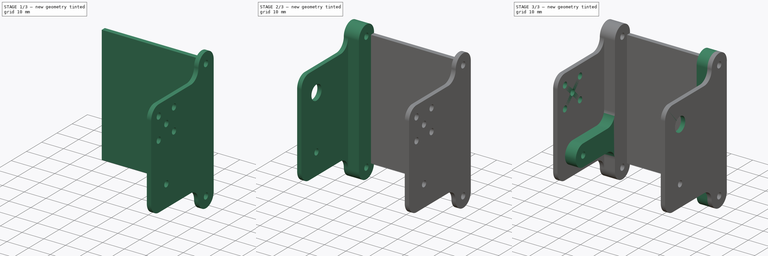
[diagram: build sequence overview — one tinted view per stage of 3, left to right]
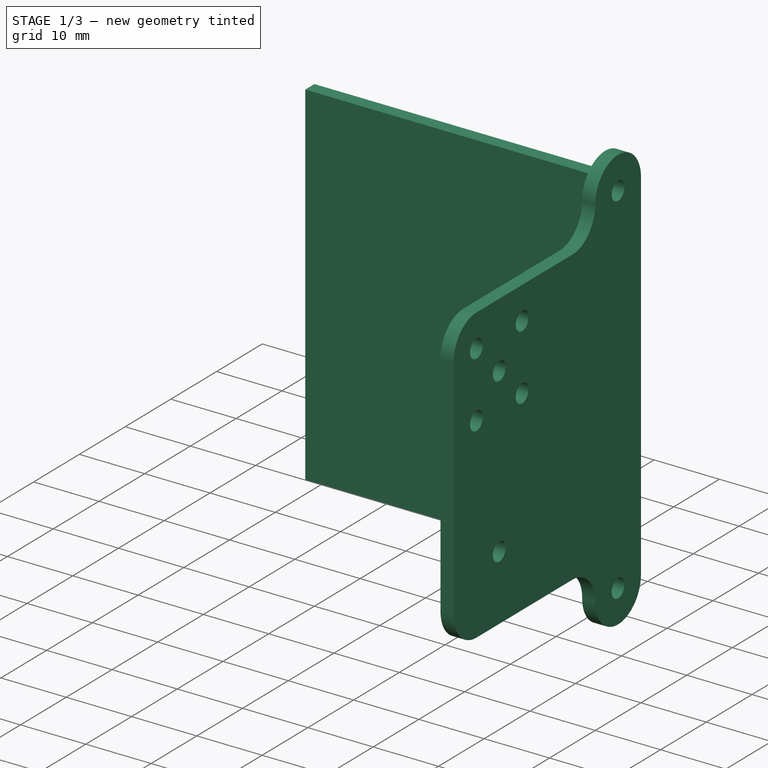
[diagram: stage 1 of 3 — iso view after this stage's code; geometry added in this stage tinted green]
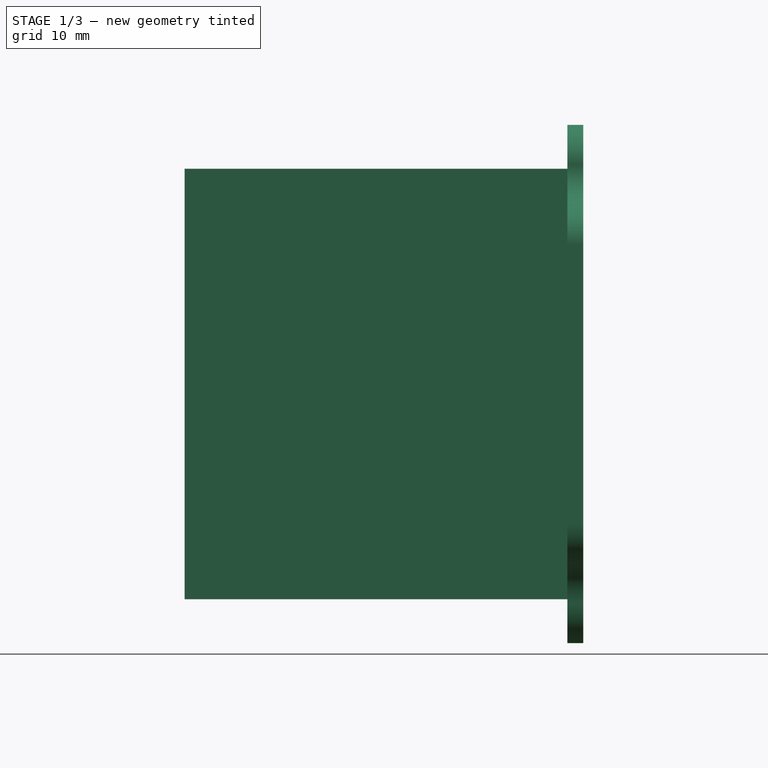
[diagram: stage 1 of 3 — front view after this stage's code; geometry added in this stage tinted green]
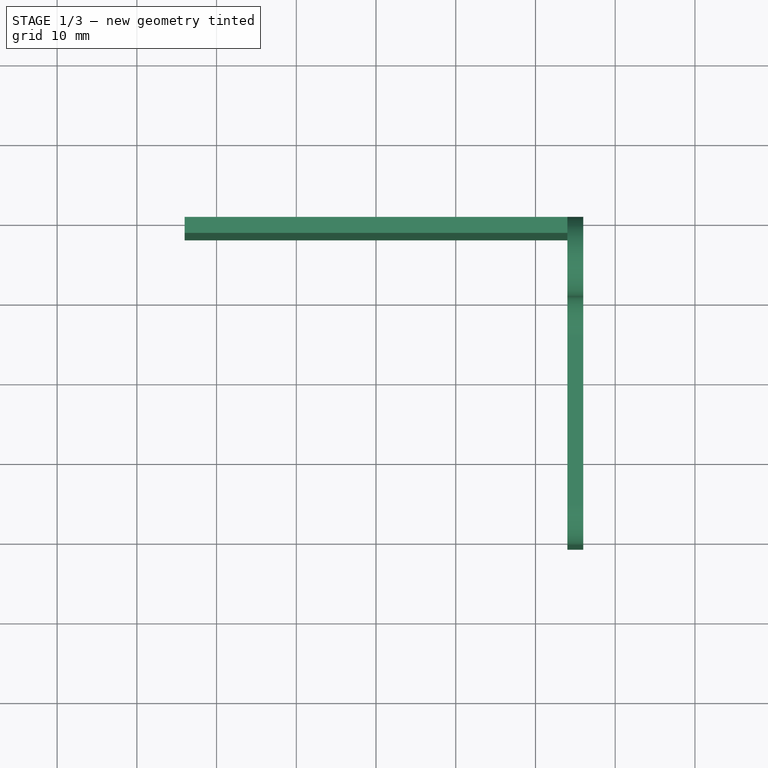
[diagram: stage 1 of 3 — top view after this stage's code; geometry added in this stage tinted green]
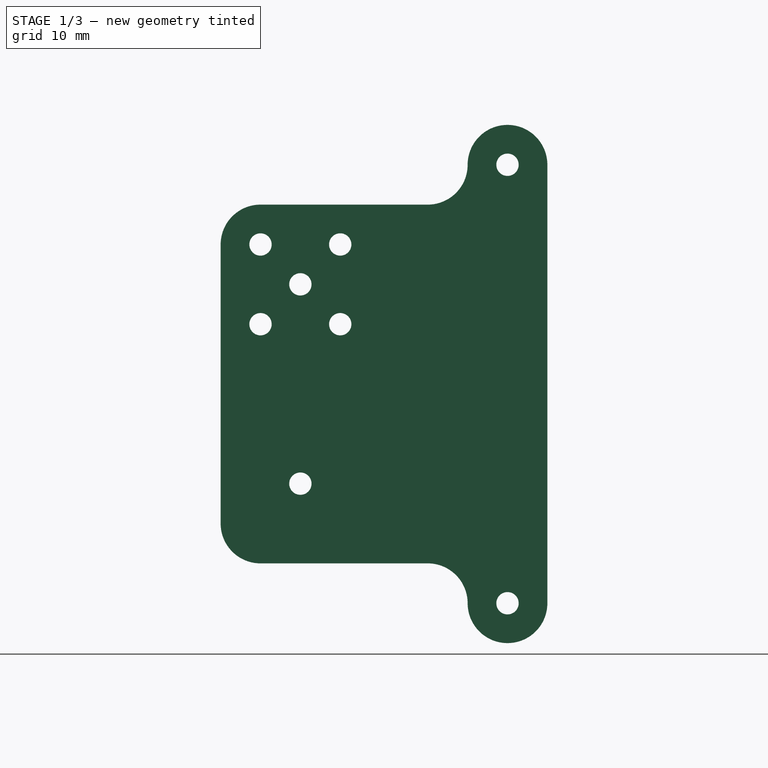
[diagram: stage 1 of 3 — right view after this stage's code; geometry added in this stage tinted green]
FCSTD DOCUMENT  (FreeCAD 0.21R33668 +26 (Git))
Label: 4L_knee
License: All rights reserved
LicenseURL: http://en.wikipedia.org/wiki/All_rights_reserved
objects: Sketcher::SketchObject×5, PartDesign::Pad×5, Spreadsheet::Sheet×1, PartDesign::Body×1, Part::Mirroring×1
note: 17 computed .brp shape members not serialized (recipe doc carries the construction recipe); baked Part::Feature solids carry a one-line shape summary decoded from their .brp

FEATURE [Spreadsheet::Sheet] Spreadsheet
  cells = A2='thickness; B2(thickness)=2; A3='foot_width; B3(foot_width)=82; A4='foot_length; B4(foot_length)=125; A5='foot_diameter; B5(foot_diameter)=5; A6='foot_whole_middle_length; B6(foot_whole_middle_length)=40; A7='foot_whole_frontback_length; B7(foot_whole_frontback_length)=20; A8='foot_side_distance; B8(foot_side_distance)=10; A9='foot_frontback_distance; B9(foot_frontback_distance)=10; A11='tarsus_radius; B11(tarsus_radius)=10; A12='tarsus_width; B12(tarsus_width)=35; A13='tarsus_height; B13(tarsus_height)=35; A14='tarsus_length; B14(tarsus_length)=49; A15='tarsus_x_pos; B15(tarsus_x_pos)=7.5; A16='tarsus_front_y_pos; B16(tarsus_front_y_pos)==B2 + B14 / 2; C16='c; A17='tarsus_back_y_pos; B17(tarsus_back_y_pos)==-(B14 / 2); C17='c; A19='screw_distance; B19(screw_distance)=7; A20='screw_center_height; B20(screw_center_height)=25; A21='screw_dia; B21(screw_dia)=2.8; A22='axis_dia; B22(axis_dia)=6; A23='screw_strengthener; B23(screw_strengthener)=5; A25='knee_z_len; B25(knee_z_len)=54; A26='knee_x_len; B26(knee_x_len)=48; A27='knee_y_len; B27(knee_y_len)=44; A28='knee_front_len; B28(knee_front_len)==68 - 2 * B30; A29='knee_back_len; B29(knee_back_len)=36; A30='screw_outer_radius; B30(screw_outer_radius)=3; A31='knee_front_holes_dist; B31(knee_front_holes_dist)==B34 + 2 * B35; C31='computed variable d; A32='knee_front_holes_y_offset; B32(knee_front_holes_y_offset)=5; A33='knee_front_back_whole_dist; B33(knee_front_back_whole_dist)==sqrt(B36 * B36 - B35 * B35); C33='computed variable e; A34='knee_back_holes_dist; B34(knee_back_holes_dist)=25; C34='variable b ; A35='knee_front_back_height; B35(knee_front_back_height)=15; C35='variable a; A36='knee_front_back_radius; B36(knee_front_back_radius)=30; C36='variable f
FEATURE [Sketcher::SketchObject] Sketch  label="kneeBasePlateSketch"
  FullyConstrained = true
  MapMode = 5
  Placement = pos=(0,0,0) rot=(1,0,0;1.5708rad)
  Support = -> [XZ_Plane]
  expr: Constraints[8] = Spreadsheet.knee_x_len
  expr: Constraints[9] = Spreadsheet.knee_z_len
  sketch-geometry (4):
    g0: LineSegment StartX=-24 StartY=27 StartZ=0 EndX=24 EndY=27 EndZ=0
    g1: LineSegment StartX=24 StartY=27 StartZ=0 EndX=24 EndY=-27 EndZ=0
    g2: LineSegment StartX=24 StartY=-27 StartZ=0 EndX=-24 EndY=-27 EndZ=0
    g3: LineSegment StartX=-24 StartY=-27 StartZ=0 EndX=-24 EndY=27 EndZ=0
  constraints (10):
    c: Coincident(g0,g1)
    c: Coincident(g1,g2)
    c: Coincident(g2,g3)
    c: Coincident(g3,g0)
    c: Horizontal(g2)
    c: Vertical(g3)
    c: Symmetric(g0,g0,g-2)
    c: Symmetric(g0,g1,g-1)
    c: DistanceX(g0,g0) = 48
    c: DistanceY(g1,g1) = 54
FEATURE [PartDesign::Pad] Pad  label="kneeBasePlatePad"
  Direction = (0,-1,-2e-16)
  Length = 2
  Length2 = 10
  Placement = pos=(0,0,0) rot=(1,0,0;1.5708rad)
  Profile = -> Sketch
  ReferenceAxis = -> Sketch [N_Axis]
  Type = 0
  expr: Length = Spreadsheet.thickness
FEATURE [Sketcher::SketchObject] Sketch001  label="outerPlateSketch"
  ExternalGeometry = -> [Pad]
  FullyConstrained = true
  MapMode = 5
  Placement = pos=(24,0,0) rot=(0.707107,0,0.707107;3.14159rad)
  Support = -> [Pad]
  expr: Constraints[20] = Spreadsheet.screw_dia
  expr: Constraints[23] = Spreadsheet.knee_front_back_whole_dist
  expr: Constraints[24] = Spreadsheet.knee_back_holes_dist
  expr: Constraints[25] = (Spreadsheet.knee_front_holes_dist - Spreadsheet.knee_back_holes_dist) / 2
  expr: Constraints[4] = Spreadsheet.knee_front_holes_dist
  expr: Constraints[5] = Spreadsheet.knee_front_holes_y_offset
  expr: Constraints[7] = Spreadsheet.screw_dia
  sketch-geometry (19):
    g0: LineSegment StartX=-27.5 StartY=0 StartZ=0 EndX=27.5 EndY=0 EndZ=0
    g1: LineSegment StartX=17.5 StartY=40.9808 StartZ=0 EndX=-17.5 EndY=40.9808 EndZ=0
    g2: ArcOfCircle CenterX=-27.5 CenterY=5 CenterZ=0 NormalX=0 NormalY=0 NormalZ=1 AngleXU=0 Radius=5 StartAngle=1.5708 EndAngle=4.71239
    g3: ArcOfCircle CenterX=27.5 CenterY=5 CenterZ=0 NormalX=0 NormalY=0 NormalZ=1 AngleXU=0 Radius=5 StartAngle=4.71239 EndAngle=7.85398
    g4: Circle CenterX=-27.5 CenterY=5 CenterZ=0 NormalX=0 NormalY=0 NormalZ=1 AngleXU=0 Radius=1.4
    g5: Circle CenterX=27.5 CenterY=5 CenterZ=0 NormalX=0 NormalY=0 NormalZ=1 AngleXU=0 Radius=1.4
    g6: Circle CenterX=12.5 CenterY=30.9808 CenterZ=0 NormalX=0 NormalY=0 NormalZ=1 AngleXU=0 Radius=1.4
    g7: Circle CenterX=17.5 CenterY=25.9808 CenterZ=0 NormalX=0 NormalY=0 NormalZ=1 AngleXU=0 Radius=1.4
    g8: Circle CenterX=17.5 CenterY=35.9808 CenterZ=0 NormalX=0 NormalY=0 NormalZ=1 AngleXU=0 Radius=1.4
    g9: Circle CenterX=7.5 CenterY=35.9808 CenterZ=0 NormalX=0 NormalY=0 NormalZ=1 AngleXU=0 Radius=1.4
    g10: Circle CenterX=7.5 CenterY=25.9808 CenterZ=0 NormalX=0 NormalY=0 NormalZ=1 AngleXU=0 Radius=1.4
    g11: Circle CenterX=-12.5 CenterY=30.9808 CenterZ=0 NormalX=0 NormalY=0 NormalZ=1 AngleXU=0 Radius=1.4
    g12: ArcOfCircle CenterX=-17.5 CenterY=35.9808 CenterZ=0 NormalX=0 NormalY=0 NormalZ=1 AngleXU=0 Radius=5 StartAngle=1.5708 EndAngle=3.14159
    g13: ArcOfCircle CenterX=17.5 CenterY=35.9808 CenterZ=0 NormalX=0 NormalY=0 NormalZ=1 AngleXU=0 Radius=5 StartAngle=-9e-16 EndAngle=1.5708
    g14: GeomPoint X=0 Y=0 Z=0
    g15: LineSegment StartX=-22.5 StartY=35.9808 StartZ=0 EndX=-22.5 EndY=15 EndZ=0
    g16: ArcOfCircle CenterX=-27.5 CenterY=15 CenterZ=0 NormalX=0 NormalY=0 NormalZ=1 AngleXU=0 Radius=5 StartAngle=4.71239 EndAngle=6.28319
    g17: LineSegment StartX=22.5 StartY=35.9808 StartZ=0 EndX=22.5 EndY=15 EndZ=0
    g18: ArcOfCircle CenterX=27.5 CenterY=15 CenterZ=0 NormalX=0 NormalY=0 NormalZ=1 AngleXU=0 Radius=5 StartAngle=3.14159 EndAngle=4.71239
  constraints (52):
    c: PointOnObject(g0,g-1)
    c: Horizontal(g1)
    c: Tangent(g3,g0) = -1.5708
    c: Tangent(g2,g0) = -1.5708
    c: DistanceX(g4,g5) = 55
    c: DistanceY(g-1,g5) = 5
    c: Equal(g4,g5)
    c: Diameter(g4) = 2.8
    c: Horizontal(g4,g5)
    c: Horizontal(g11,g6)
    c: Vertical(g9,g10)
    c: Vertical(g8,g7)
    c: Horizontal(g9,g8)
    c: Horizontal(g10,g7)
    c: Symmetric(g9,g7,g6)
    c: Equal(g9,g10)
    c: Equal(g9,g11)
    c: Equal(g9,g6)
    c: Equal(g9,g7)
    c: Equal(g9,g8)
    c: Diameter(g9) = 2.8
    c: DistanceX(g10,g7) = 10
    c: DistanceY(g10,g9) = 10
    c: DistanceY(g4,g11) = 25.9808
    c: DistanceX(g11,g6) = 25
    c: DistanceX(g4,g11) = 15
    c: Tangent(g1,g12) = -1.5708
    c: Tangent(g1,g13) = -1.5708
    c: Radius(g12) = 5
    c: Radius(g13) = 5
    c: Coincident(g2,g4)
    c: Coincident(g3,g5)
    c: Coincident(g13,g8)
    c: DistanceX(g12,g11) = 5
    c: Symmetric(g0,g0,g14)
    c: Coincident(g14,g-1)
    c: Coincident(g15,g12)
    c: Vertical(g15)
    c: Coincident(g16,g15)
    c: Coincident(g16,g2)
    c: Horizontal(g15,g16)
    c: Vertical(g2,g2)
    c: Vertical(g2,g16)
    c: Horizontal(g12,g12)
    c: Coincident(g17,g13)
    c: Vertical(g17)
    c: Coincident(g18,g3)
    c: Coincident(g18,g17)
    c: Horizontal(g18,g17)
    c: Vertical(g3,g3)
    c: Vertical(g18,g3)
    c: Horizontal(g13,g12)
FEATURE [Sketcher::SketchObject] Sketch002  label="innerPlateSketch"
  ExternalGeometry = -> [Sketch001,Pad]
  FullyConstrained = true
  MapMode = 5
  Placement = pos=(-24,0,0) rot=(0.707107,0,-0.707107;3.14159rad)
  Support = -> [Pad]
  expr: Constraints[0] = Spreadsheet.axis_dia + 0.8
  sketch-geometry (15):
    g0: LineSegment StartX=27 StartY=0 StartZ=0 EndX=-27 EndY=0 EndZ=0
    g1: Circle CenterX=-12.5 CenterY=30.9808 CenterZ=0 NormalX=0 NormalY=0 NormalZ=1 AngleXU=0 Radius=3.4
    g2: Circle CenterX=12.5 CenterY=30.9808 CenterZ=0 NormalX=0 NormalY=0 NormalZ=1 AngleXU=0 Radius=1.4
    g3: Circle CenterX=27.5 CenterY=5 CenterZ=0 NormalX=0 NormalY=0 NormalZ=1 AngleXU=0 Radius=1.4
    g4: Circle CenterX=-27.5 CenterY=5 CenterZ=0 NormalX=0 NormalY=0 NormalZ=1 AngleXU=0 Radius=1.4
    g5: GeomPoint X=17.5 Y=35.9808 Z=0
    g6: ArcOfCircle CenterX=-17.5 CenterY=35.9808 CenterZ=0 NormalX=0 NormalY=0 NormalZ=1 AngleXU=0 Radius=5 StartAngle=1.5708 EndAngle=3.14159
    g7: LineSegment StartX=-17.5 StartY=40.9808 StartZ=0 EndX=17.5 EndY=40.9808 EndZ=0
    g8: ArcOfCircle CenterX=17.5 CenterY=35.9808 CenterZ=0 NormalX=0 NormalY=0 NormalZ=1 AngleXU=0 Radius=5 StartAngle=6e-16 EndAngle=1.5708
    g9: ArcOfCircle CenterX=-27.5 CenterY=5 CenterZ=0 NormalX=0 NormalY=0 NormalZ=1 AngleXU=0 Radius=5.02494 StartAngle=1.5708 EndAngle=4.81206
    g10: ArcOfCircle CenterX=27.5 CenterY=5 CenterZ=0 NormalX=0 NormalY=0 NormalZ=1 AngleXU=0 Radius=5.02494 StartAngle=4.61272 EndAngle=7.85398
    g11: LineSegment StartX=-22.5 StartY=35.9808 StartZ=0 EndX=-22.5 EndY=15.0249 EndZ=0
    g12: ArcOfCircle CenterX=-27.5 CenterY=15.0249 CenterZ=0 NormalX=0 NormalY=0 NormalZ=1 AngleXU=0 Radius=5 StartAngle=4.71239 EndAngle=6.28319
    g13: LineSegment StartX=22.5 StartY=35.9808 StartZ=0 EndX=22.5 EndY=15.0249 EndZ=0
    g14: ArcOfCircle CenterX=27.5 CenterY=15.0249 CenterZ=0 NormalX=0 NormalY=0 NormalZ=1 AngleXU=0 Radius=5 StartAngle=3.14159 EndAngle=4.71239
  constraints (38):
    c: Diameter(g1) = 6.8
    c: DistanceX(g2,g5) = 5
    c: Horizontal(g6,g5)
    c: Coincident(g7,g6)
    c: Coincident(g8,g5)
    c: Coincident(g8,g7)
    c: Coincident(g9,g0)
    c: Coincident(g10,g0)
    c: Coincident(g0,g-9)
    c: Coincident(g0,g-9)
    c: Equal(g3,g-5)
    c: Coincident(g3,g-5)
    c: Coincident(g10,g3)
    c: Vertical(g10,g3)
    c: Equal(g4,g-4)
    c: Coincident(g4,g-4)
    c: Coincident(g9,g4)
    c: Vertical(g9,g4)
    c: Coincident(g1,g-10)
    c: Coincident(g6,g-3)
    c: Coincident(g6,g-7)
    c: Equal(g-6,g2)
    c: Coincident(g2,g-6)
    c: Coincident(g7,g-7)
    c: Horizontal(g8,g8)
    c: Horizontal(g6,g6)
    c: Coincident(g11,g6)
    c: Vertical(g11)
    c: Coincident(g12,g11)
    c: Coincident(g12,g9)
    c: Vertical(g12,g9)
    c: Horizontal(g11,g12)
    c: Coincident(g13,g8)
    c: Vertical(g13)
    c: Coincident(g14,g13)
    c: Coincident(g14,g10)
    c: Vertical(g14,g10)
    c: Horizontal(g13,g14)
FEATURE [PartDesign::Pad] Pad001  label="outerPlatePad"
  BaseFeature = -> Pad
  Direction = (1,0,-2e-16)
  Length = 2
  Length2 = 10
  Placement = pos=(0,0,0) rot=(1,0,0;1.5708rad)
  Profile = -> Sketch001
  ReferenceAxis = -> Sketch001 [N_Axis]
  Type = 0
  expr: Length = Spreadsheet.thickness
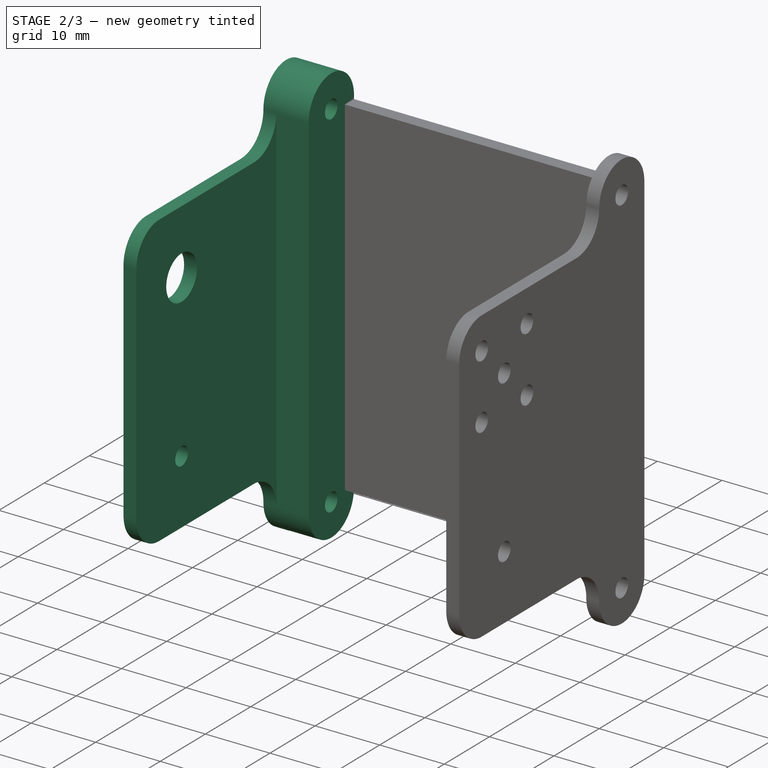
[diagram: stage 2 of 3 — iso view after this stage's code; geometry added in this stage tinted green]
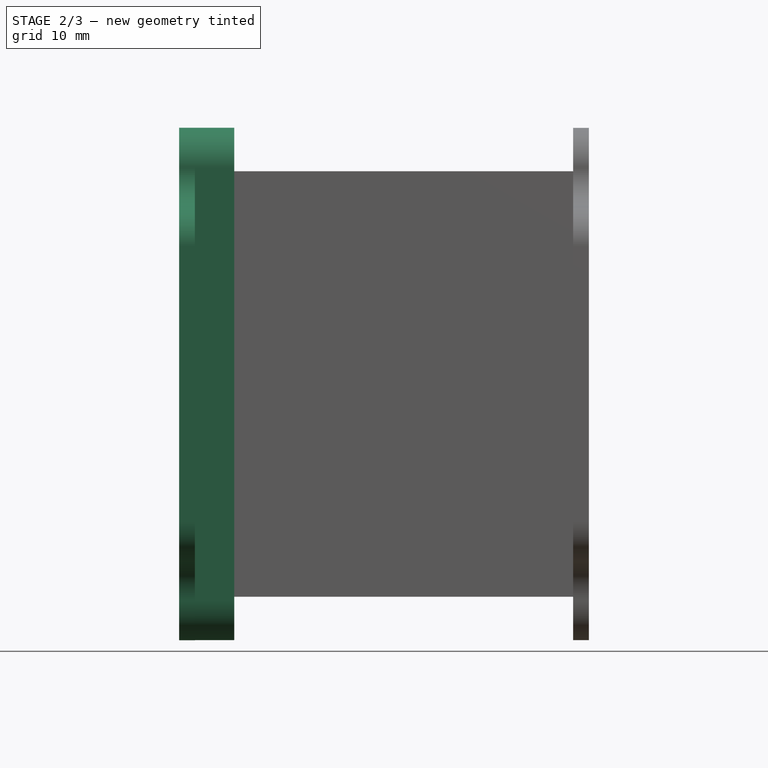
[diagram: stage 2 of 3 — front view after this stage's code; geometry added in this stage tinted green]
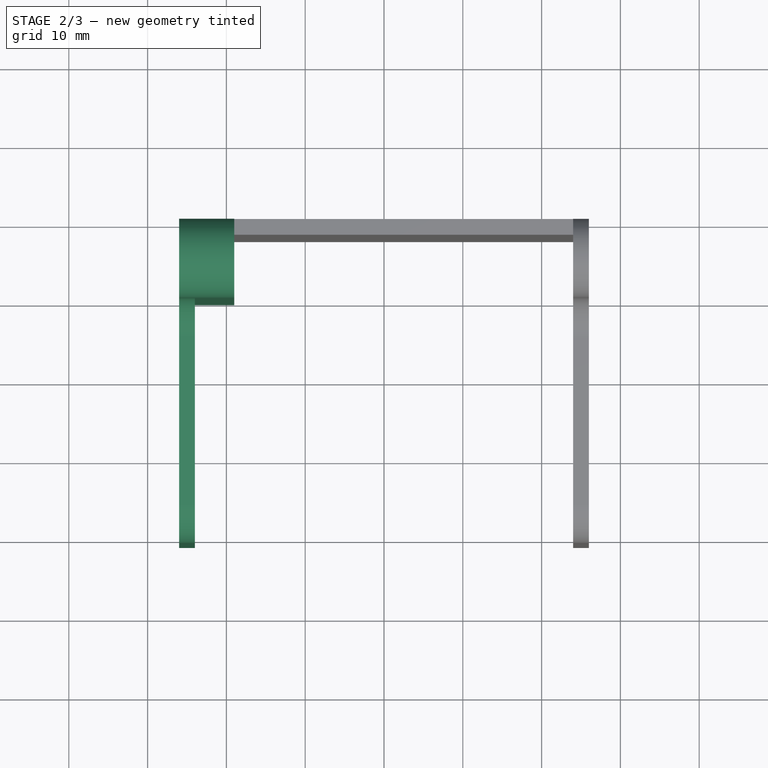
[diagram: stage 2 of 3 — top view after this stage's code; geometry added in this stage tinted green]
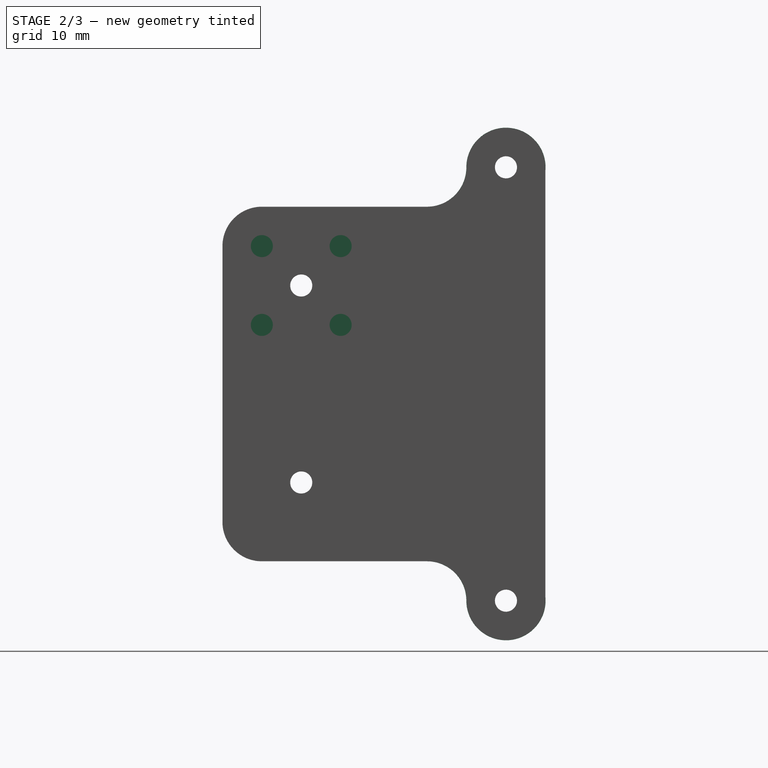
[diagram: stage 2 of 3 — right view after this stage's code; geometry added in this stage tinted green]
FEATURE [PartDesign::Pad] Pad002  label="innerPlatePad"
  BaseFeature = -> Pad001
  Direction = (-1,0,-2e-16)
  Length = 2
  Length2 = 10
  Placement = pos=(0,0,0) rot=(1,0,0;1.5708rad)
  Profile = -> Sketch002
  ReferenceAxis = -> Sketch002 [N_Axis]
  Type = 0
  expr: Length = Spreadsheet.thickness
FEATURE [Sketcher::SketchObject] Sketch003  label="servoSideStrengthenerSketch"
  ExternalGeometry = -> [Pad002]
  FullyConstrained = true
  MapMode = 5
  Placement = pos=(-24,0,-5.4e-15) rot=(0.707107,0,0.707107;3.14159rad)
  Support = -> [Pad002]
  sketch-geometry (6):
    g0: Circle CenterX=-27.5 CenterY=5 CenterZ=0 NormalX=0 NormalY=0 NormalZ=1 AngleXU=0 Radius=1.4
    g1: ArcOfCircle CenterX=-27.5 CenterY=5 CenterZ=0 NormalX=0 NormalY=0 NormalZ=1 AngleXU=0 Radius=5 StartAngle=1.5708 EndAngle=4.71239
    g2: Circle CenterX=27.5 CenterY=5 CenterZ=0 NormalX=0 NormalY=0 NormalZ=1 AngleXU=0 Radius=1.4
    g3: ArcOfCircle CenterX=27.5 CenterY=5 CenterZ=0 NormalX=0 NormalY=0 NormalZ=1 AngleXU=0 Radius=5.02494 StartAngle=4.61272 EndAngle=7.85398
    g4: LineSegment StartX=-27.5 StartY=10 StartZ=0 EndX=27.5 EndY=10.0249 EndZ=0
    g5: LineSegment StartX=27 StartY=-2.7e-15 StartZ=0 EndX=-27.5 EndY=-3.6e-15 EndZ=0
  constraints (14):
    c: Coincident(g0,g-4)
    c: Equal(g0,g-3)
    c: Coincident(g1,g0)
    c: Equal(g2,g-5)
    c: Coincident(g1,g-4)
    c: Coincident(g4,g1)
    c: Coincident(g4,g3)
    c: Coincident(g5,g3)
    c: Coincident(g5,g1)
    c: Coincident(g3,g-6)
    c: Coincident(g2,g-6)
    c: Vertical(g1,g0)
    c: Coincident(g3,g2)
    c: Vertical(g3,g2)
FEATURE [PartDesign::Pad] Pad003  label="servoSideStrengthenerPad"
  BaseFeature = -> Pad002
  Direction = (1,0,2e-16)
  Length = 5
  Length2 = 10
  Placement = pos=(0,0,0) rot=(1,0,0;1.5708rad)
  Profile = -> Sketch003
  ReferenceAxis = -> Sketch003 [N_Axis]
  Type = 0
  expr: Length = Spreadsheet.screw_strengthener
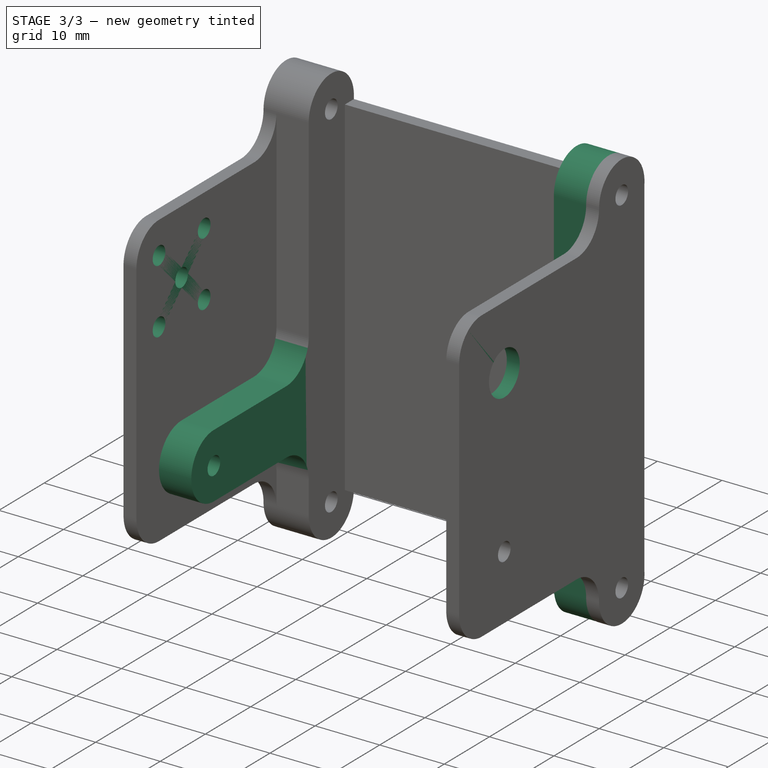
[diagram: stage 3 of 3 — iso view after this stage's code; geometry added in this stage tinted green]
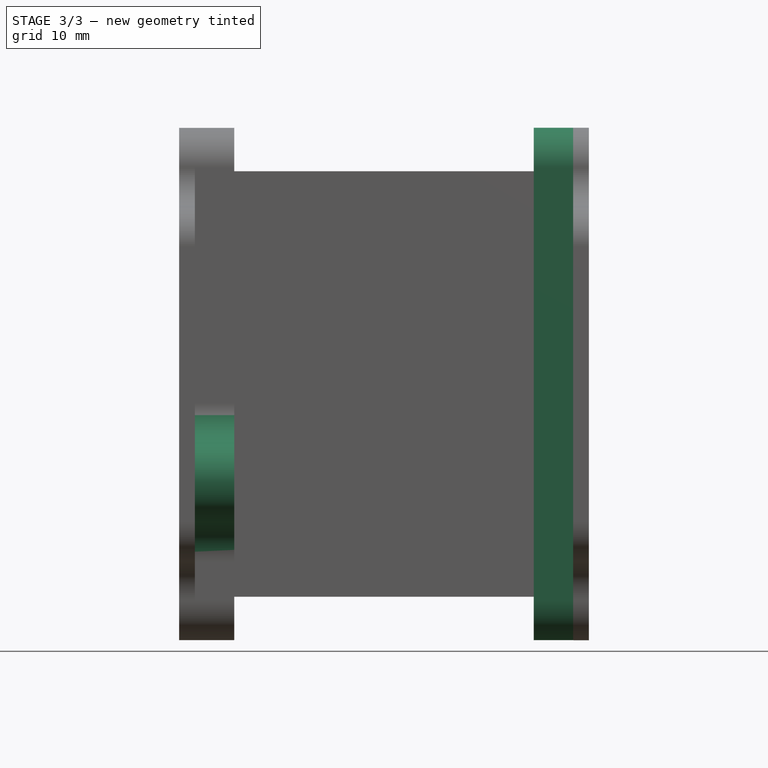
[diagram: stage 3 of 3 — front view after this stage's code; geometry added in this stage tinted green]
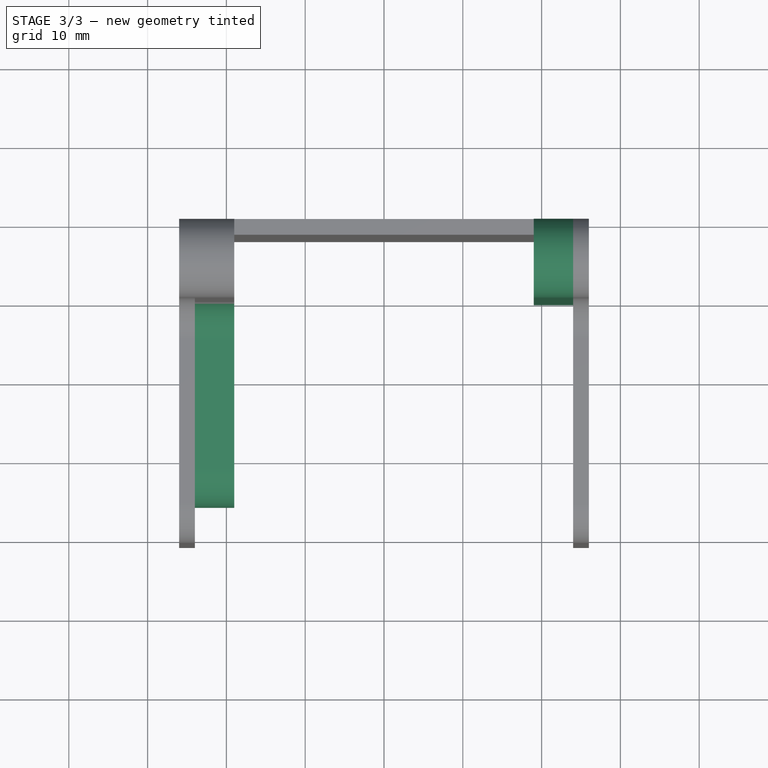
[diagram: stage 3 of 3 — top view after this stage's code; geometry added in this stage tinted green]
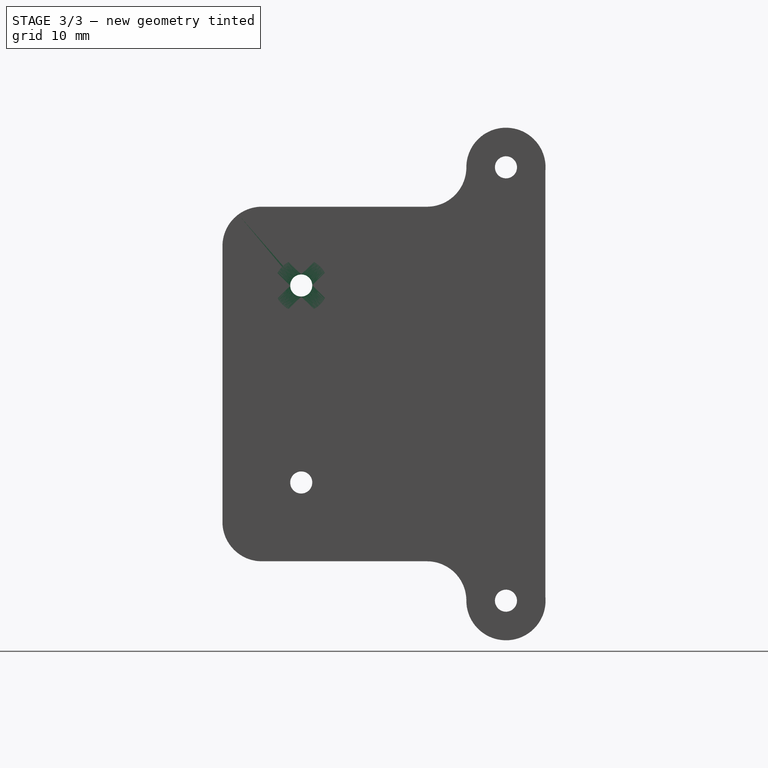
[diagram: stage 3 of 3 — right view after this stage's code; geometry added in this stage tinted green]
FEATURE [Sketcher::SketchObject] Sketch004  label="KnobSideStrengthenerSketch"
  ExternalGeometry = -> [Pad003]
  FullyConstrained = true
  MapMode = 5
  Placement = pos=(24,-1e-16,-5.4e-15) rot=(-0.707107,0,0.707107;3.14159rad)
  Support = -> [Pad003]
  sketch-geometry (14):
    g0: Circle CenterX=-27.5 CenterY=5 CenterZ=0 NormalX=0 NormalY=0 NormalZ=1 AngleXU=0 Radius=1.4
    g1: ArcOfCircle CenterX=-27.5 CenterY=5 CenterZ=0 NormalX=0 NormalY=0 NormalZ=1 AngleXU=0 Radius=5 StartAngle=1.5708 EndAngle=4.71239
    g2: Circle CenterX=27.5 CenterY=5 CenterZ=0 NormalX=0 NormalY=0 NormalZ=1 AngleXU=0 Radius=1.4
    g3: ArcOfCircle CenterX=27.5 CenterY=5 CenterZ=0 NormalX=0 NormalY=0 NormalZ=1 AngleXU=0 Radius=5 StartAngle=4.71239 EndAngle=7.85398
    g4: LineSegment StartX=-27.5 StartY=10 StartZ=0 EndX=2.5 EndY=10 EndZ=0
    g5: LineSegment StartX=27.5 StartY=6.2e-15 StartZ=0 EndX=-27.5 EndY=6.2e-15 EndZ=0
    g6: Circle CenterX=12.5 CenterY=30.9808 CenterZ=0 NormalX=0 NormalY=0 NormalZ=1 AngleXU=0 Radius=1.4
    g7: GeomPoint X=17.5 Y=30.9808 Z=0
    g8: LineSegment StartX=7.5 StartY=30.9808 StartZ=0 EndX=7.5 EndY=15 EndZ=0
    g9: LineSegment StartX=17.5 StartY=30.9808 StartZ=0 EndX=17.5 EndY=15 EndZ=0
    g10: ArcOfCircle CenterX=2.5 CenterY=15 CenterZ=0 NormalX=0 NormalY=0 NormalZ=1 AngleXU=0 Radius=5 StartAngle=4.71239 EndAngle=6.28319
    g11: LineSegment StartX=22.5 StartY=10 StartZ=0 EndX=27.5 EndY=10 EndZ=0
    g12: ArcOfCircle CenterX=22.5 CenterY=15 CenterZ=0 NormalX=0 NormalY=0 NormalZ=1 AngleXU=0 Radius=5 StartAngle=3.14159 EndAngle=4.71239
    g13: ArcOfCircle CenterX=12.5 CenterY=30.9808 CenterZ=0 NormalX=0 NormalY=0 NormalZ=1 AngleXU=0 Radius=5 StartAngle=0 EndAngle=3.14159
  constraints (32):
    c: Coincident(g0,g-4)
    c: Equal(g0,g-3)
    c: Coincident(g1,g0)
    c: Coincident(g2,g-6)
    c: Equal(g2,g-5)
    c: Coincident(g3,g2)
    c: Coincident(g1,g-4)
    c: Coincident(g3,g-6)
    c: Coincident(g4,g1)
    c: Coincident(g5,g3)
    c: Coincident(g5,g1)
    c: Coincident(g6,g-7)
    c: Equal(g-7,g6)
    c: Horizontal(g7,g6)
    c: Vertical(g8)
    c: Coincident(g9,g7)
    c: Vertical(g9)
    c: Tangent(g8,g10) = 1.5708
    c: Tangent(g4,g10) = -1.5708
    c: Horizontal(g11)
    c: Tangent(g11,g12) = -1.5708
    c: Tangent(g9,g12) = -1.5708
    c: Horizontal(g12,g10)
    c: Coincident(g11,g3)
    c: Horizontal(g4)
    c: Coincident(g13,g6)
    c: Coincident(g13,g9)
    c: Coincident(g13,g8)
    c: Horizontal(g8,g6)
    c: Horizontal(g5)
    c: Horizontal(g1,g3)
    c: Coincident(g12,g-8)
FEATURE [PartDesign::Pad] Pad004  label="KnobSideStrengthenerPad"
  BaseFeature = -> Pad003
  Direction = (-1,0,2e-16)
  Length = 5
  Length2 = 10
  Placement = pos=(0,0,0) rot=(1,0,0;1.5708rad)
  Profile = -> Sketch004
  ReferenceAxis = -> Sketch004 [N_Axis]
  Type = 0
  expr: Length = Spreadsheet.screw_strengthener
FEATURE [PartDesign::Body] Body
  Group = -> [Sketch,Pad,Sketch001,Sketch002,Pad001,Pad002,Sketch003,Pad003,Sketch004,Pad004]
  Origin = -> Origin
  Tip = -> Pad004
FEATURE [Part::Mirroring] Part__Mirroring  label="Body (Mirror #1)"
  Base = (0,0,0)
  Normal = (1,0,0)
  Source = -> Body
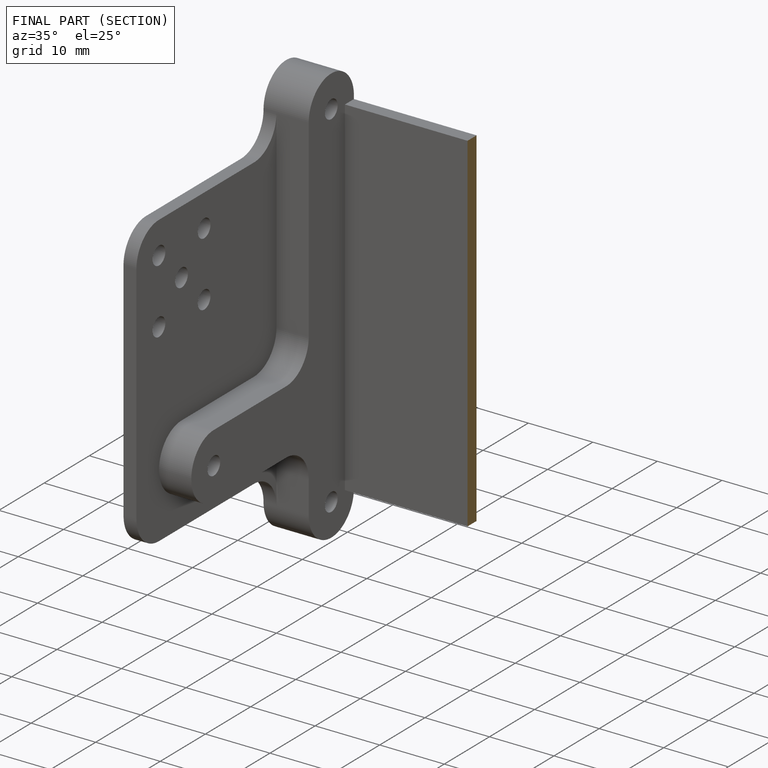
[diagram: finished part — half-section view (interior)]
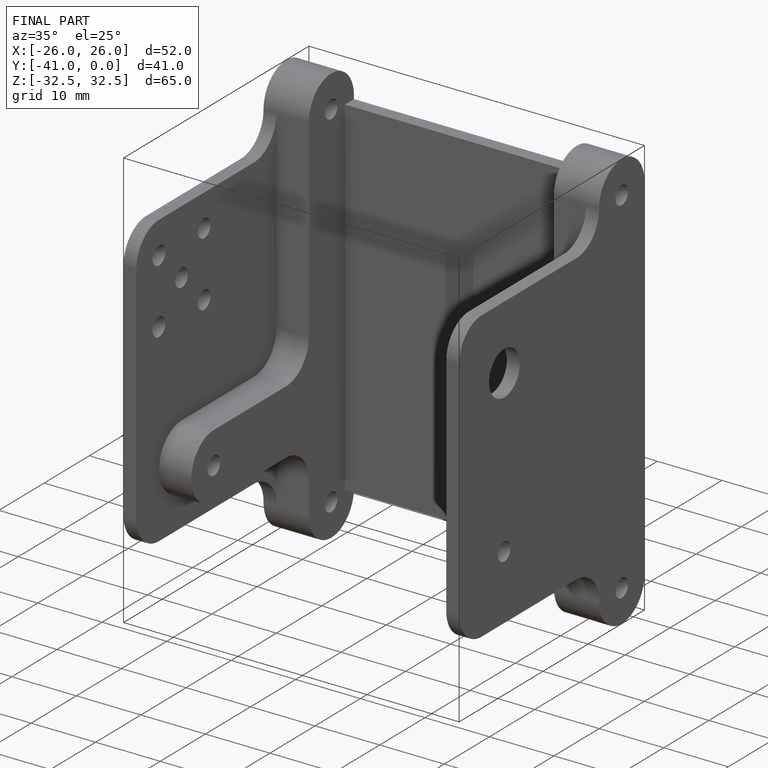
[diagram: finished part — iso view with bounding-box wireframe]
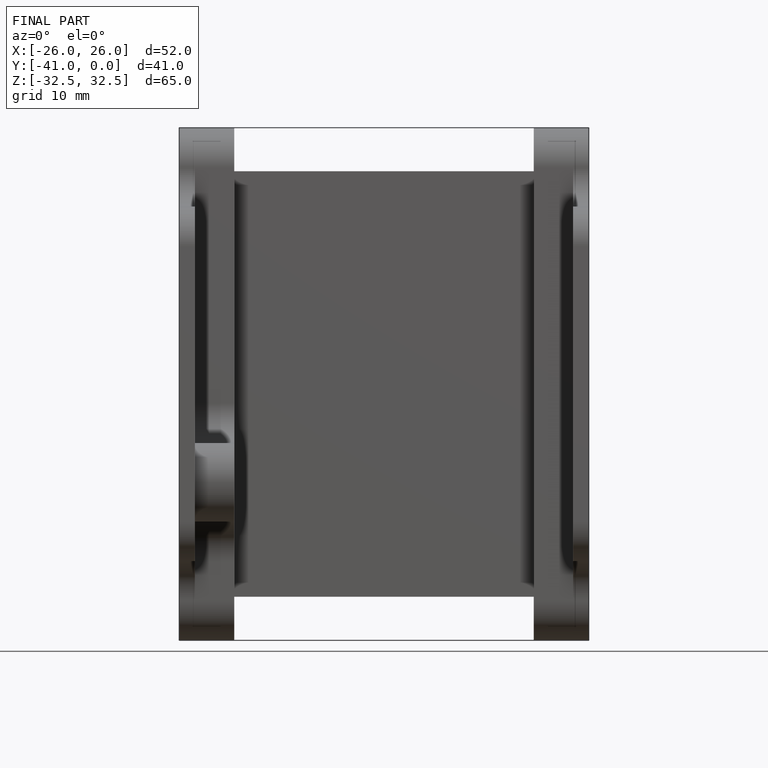
[diagram: finished part — front view with bounding-box wireframe]
